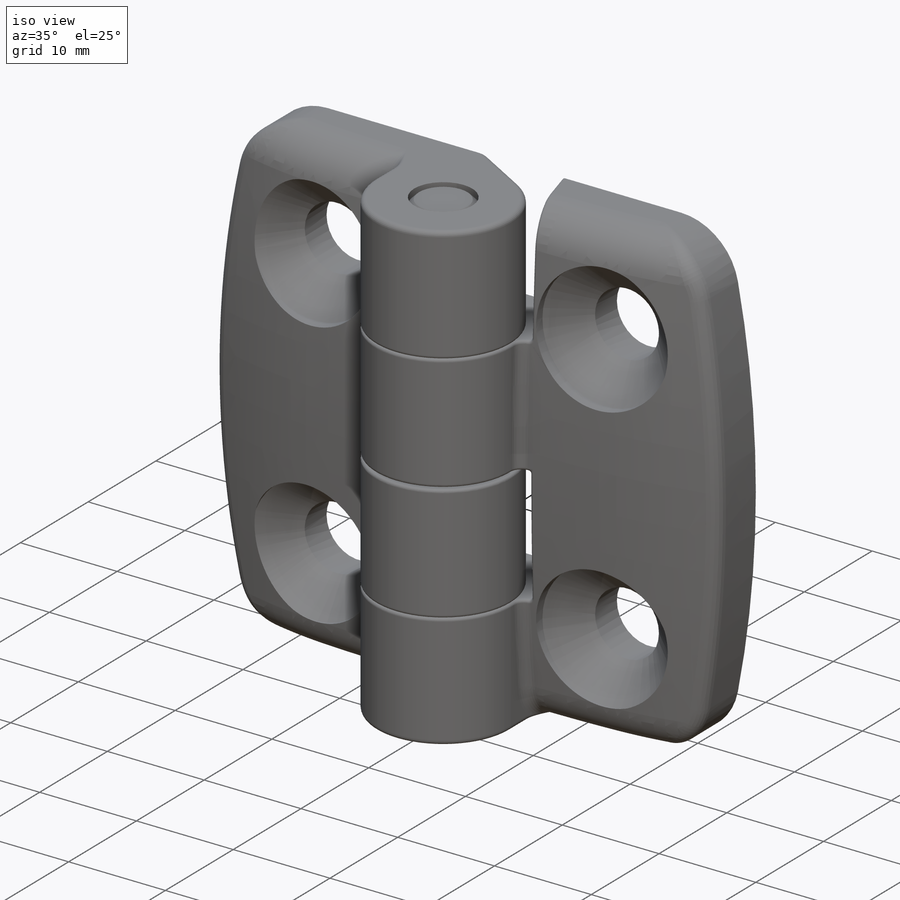
[diagram: iso view]
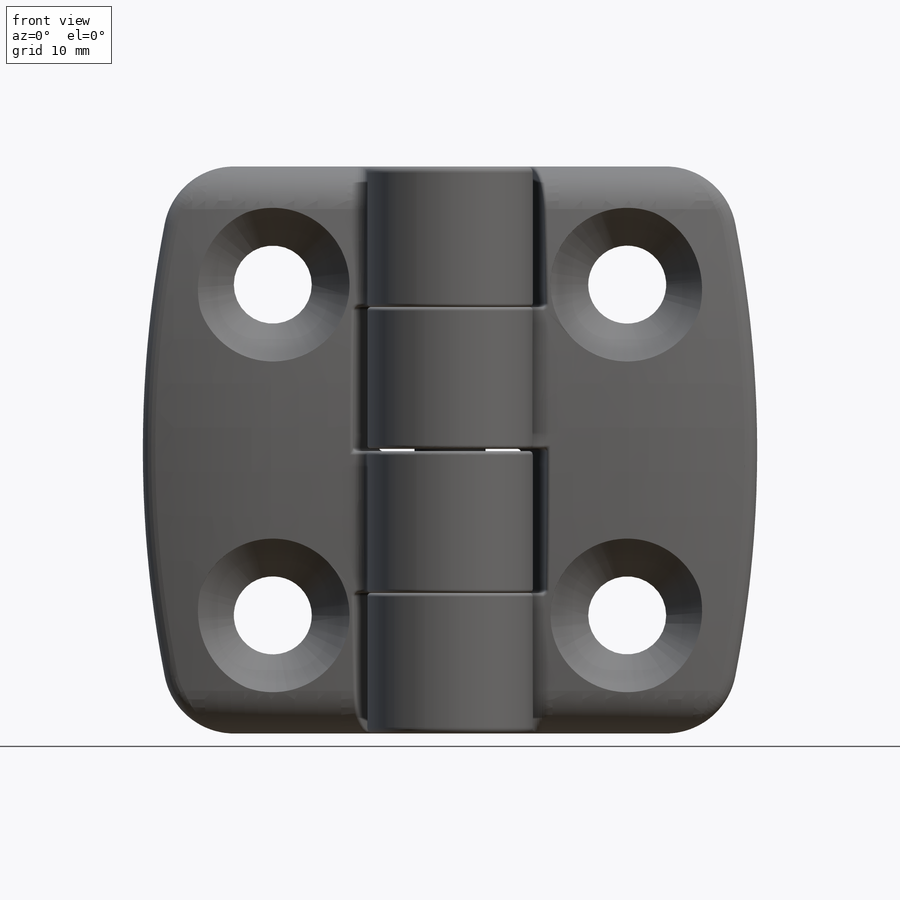
[diagram: front view]
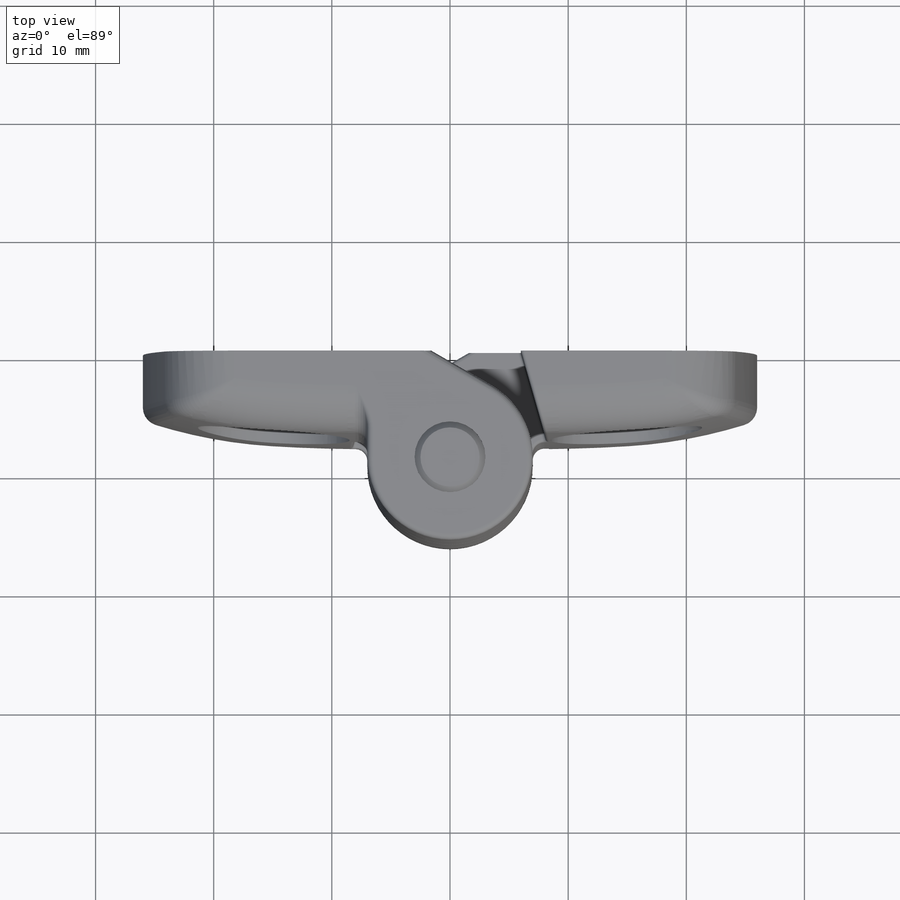
[diagram: top view]
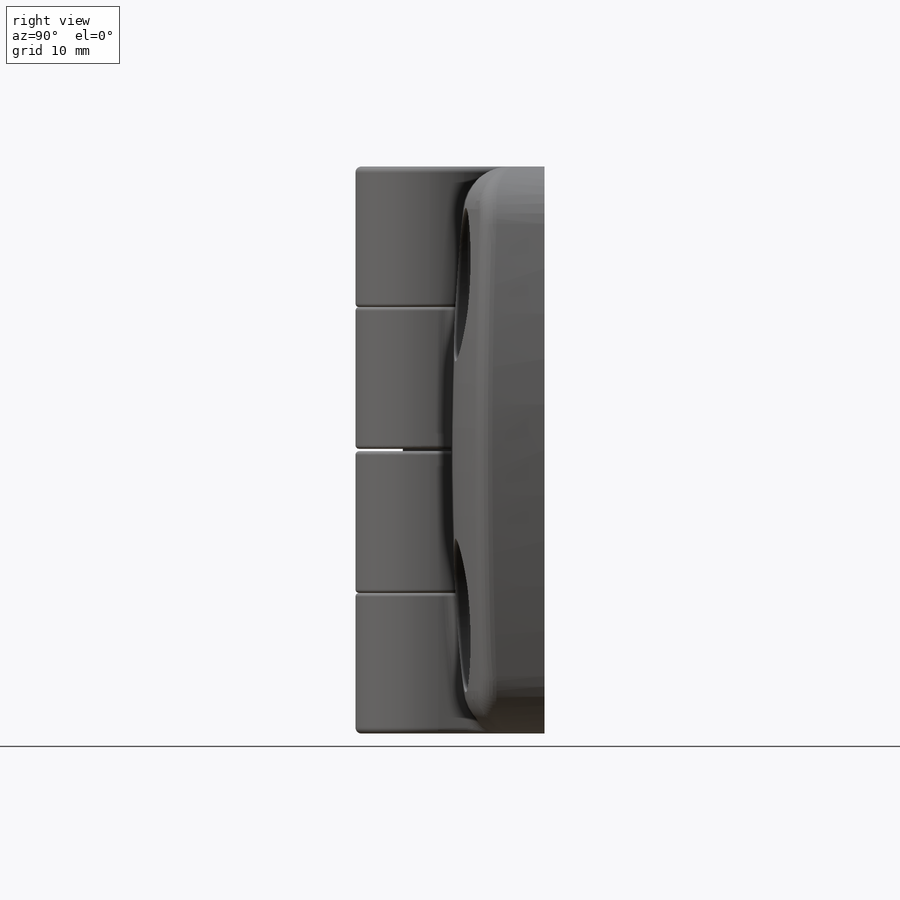
[diagram: right view]
SOLIDWORKS PART (.sldprt)
format: sldprt  version: not decoded by parser v0  size: 916,992 bytes
history: native  units: mm
features: sketch x7, fillet x6, mirror x3, extrude x2, cut_revolve x2, cut_extrude x2, material x1, plane x1, delete_body x1, revolve x1 (+15 scaffold rows collapsed)
feature tree (41):
  scaffold x15  (default folders/planes/origin — collapsed)
  material  "Material <not specified>"
  sketch  "Sketch1"  dims[D4=100.0mm D5=6.0mm D9=6.6mm D1=48.0mm D2=26.0mm D3=7.0mm D6=20.0mm D7=15.0mm D8=28.0mm]
  extrude  "Boss-Extrude1"  Depth=8mm
  sketch  "Sketch2"  dims[D1=125.0mm D2=5.5mm D3=10.85mm D4=7.9mm D5=18.7mm D6=210.0mm]
  cut_revolve  "Cut-Revolve2"  Angle=360deg
  sketch  "Sketch3"  dims[D1=14.0mm D3=6.0mm D2=9.0mm D4=3.5mm]
  extrude  "Boss-Extrude2"  [1 undecoded]
  sketch  "Sketch4"  dims[c1.D3=9.0mm c2.D3=16.0deg c2.D1=6.0mm c2.D4=6.0mm c3.D1=0.0mm c3.D2=0.0mm]
  cut_extrude  "Cut-Extrude2"  Depth=12.2mm
  sketch  "Sketch5"  dims[c1.D1=0.0mm c1.D2=0.0mm c2.D1=0.0mm]
  cut_extrude  "Cut-Extrude3"  Depth=12.1mm
  plane  "Plane1"
  sketch  "Sketch6"  dims[c1.D1=3.3mm c1.D2=3.2mm c1.D3=8.0mm c2.D3=1.0deg c2.D4=3.2mm c3.D4=45.0deg c3.D5=1.5mm]
  cut_revolve  "Cut-Revolve1"  Angle=360deg
  fillet  "Fillet1"  Radius=1.5mm
  fillet  "Fillet2"  Radius=4mm
  fillet  "Fillet3"  Radius=1mm
  fillet  "Fillet4"  Radius=0.5mm
  fillet  "Fillet5"  Radius=0.3mm
  fillet  "Fillet6"  Radius=0.3mm
  mirror  "Mirror1"
  mirror  "Mirror2"
  mirror  "Mirror3"
  delete_body  "Body-Delete1"
  sketch  "SketchX"  dims[c1.D1=0.508mm c1.D2=9.144mm c1.D3=0.508mm c1.D4=0.254mm c2.D1=47.6mm c2.D2=0.5mm]
  revolve  "Revolve1"  Angle=360deg
decode coverage: 19 of 24 modeling features carry decoded parameters
note: 1 parameter value undecoded
note: suppression state not decoded; provenance and decode notes live in map.json
